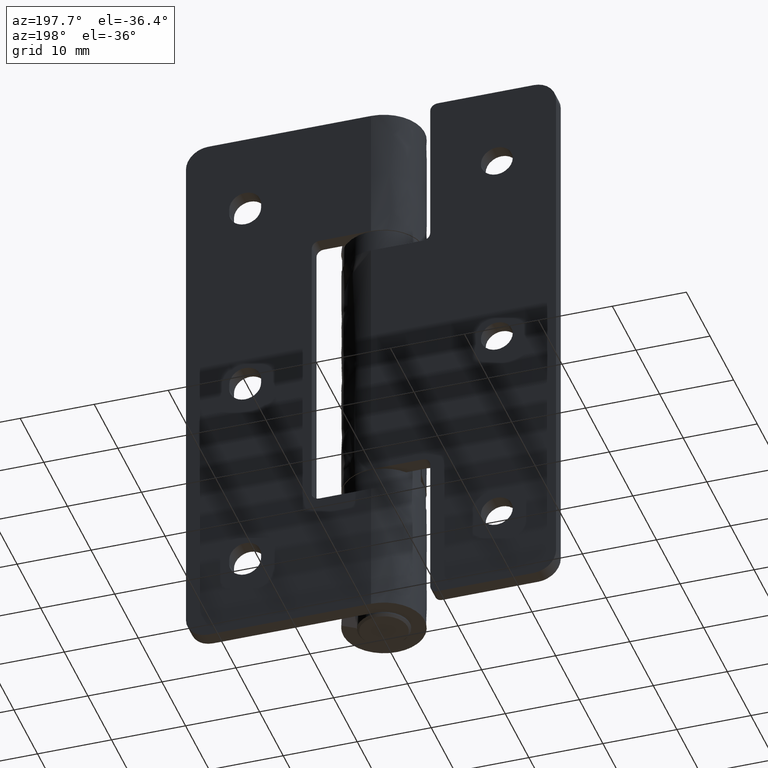
[diagram: clean part render]
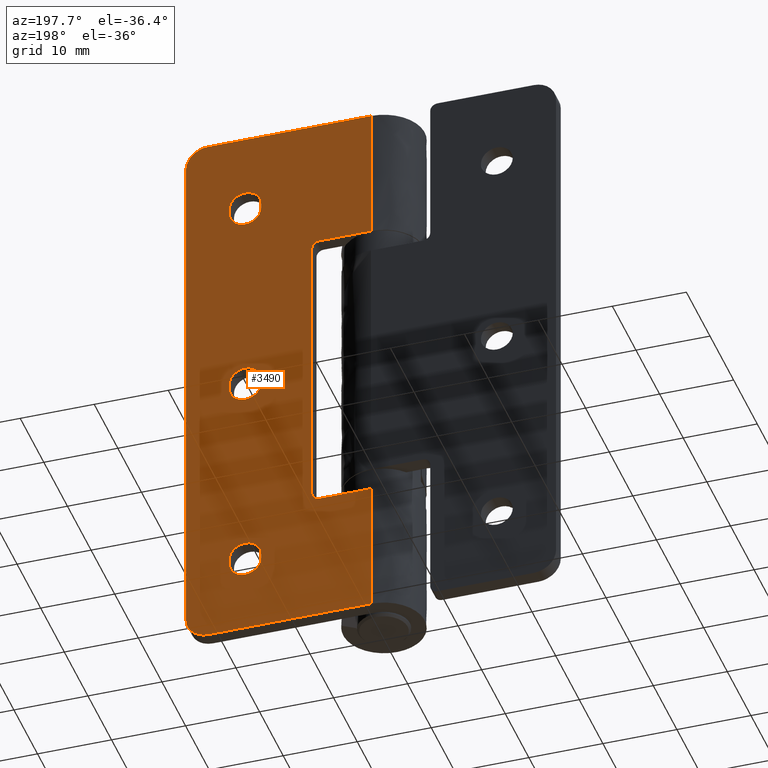
[diagram: same view with one face highlighted and labeled with its STEP entity id]
A machine part, auxiliary view. The second image highlights one B-rep face of the part: STEP entity #3490.
In plain terms, the highlighted face is a freeform B-spline surface patch.
Its self-contained STEP definition (entity closure, byte-faithful):
#3152=CARTESIAN_POINT('',(-1.248749951545153,5.500000000000229,-3.896099848820864));
#3153=CARTESIAN_POINT('',(-1.248749951545153,5.500000000000229,81.896101940943907));
#3154=CARTESIAN_POINT('',(26.248750622097401,5.500000000000229,-3.896099848820863));
#3155=CARTESIAN_POINT('',(26.248750622097401,5.500000000000229,81.896101940943893));
#3156=B_SPLINE_SURFACE_WITH_KNOTS('',1,1,((#3152,#3154),(#3153,#3155)),.UNSPECIFIED.,.F.,.F.,.U.,(2,2),(2,2),(0.0,85.792201789764775),(0.0,27.497500573642562),.UNSPECIFIED.);
#3157=CARTESIAN_POINT('',(25.0,5.500000000000229,75.0));
#3158=VERTEX_POINT('',#3157);
#3159=CARTESIAN_POINT('',(25.0,5.500000000000229,3.0));
#3160=VERTEX_POINT('',#3159);
#3161=CARTESIAN_POINT('',(25.0,5.500000000000229,75.0));
#3162=CARTESIAN_POINT('',(25.0,5.500000000000229,3.0));
#3163=QUASI_UNIFORM_CURVE('',1,(#3161,#3162),.UNSPECIFIED.,.F.,.U.);
#3164=EDGE_CURVE('',#3158,#3160,#3163,.T.);
#3165=ORIENTED_EDGE('',*,*,#3164,.T.);
#3166=CARTESIAN_POINT('',(22.0,5.500000000000229,0.0));
#3167=VERTEX_POINT('',#3166);
#3168=CARTESIAN_POINT('',(25.0,5.500000000000229,3.0));
#3169=CARTESIAN_POINT('',(25.000027480727439,5.500000000000230,2.791382157793408));
#3170=CARTESIAN_POINT('',(24.953751763112731,5.500000000000223,2.349601050011243));
#3171=CARTESIAN_POINT('',(24.744550256856702,5.500000000000227,1.729081440651634));
#3172=CARTESIAN_POINT('',(24.360088237216491,5.500000000000229,1.096373399505009));
#3173=CARTESIAN_POINT('',(23.836272029858499,5.500000000000240,0.585221534538158));
#3174=CARTESIAN_POINT('',(23.213104508231918,5.500000000000208,0.232317915967362));
#3175=CARTESIAN_POINT('',(22.613574675077700,5.500000000000273,0.042417446279853));
#3176=CARTESIAN_POINT('',(22.208618388382650,5.500000000000165,-0.000032017783351));
#3177=CARTESIAN_POINT('',(22.0,5.500000000000229,0.0));
#3178=B_SPLINE_CURVE_WITH_KNOTS('',3,(#3168,#3169,#3170,#3171,#3172,#3173,#3174,#3175,#3176,#3177),.UNSPECIFIED.,.F.,.U.,(4,1,1,1,1,1,1,4),(0.000000112346786,0.625853452176254,1.325372295738692,1.951245934180809,2.834800403710038,3.497497864234447,4.086567110701514,4.712418548635879),.UNSPECIFIED.);
#3179=EDGE_CURVE('',#3160,#3167,#3178,.T.);
#3180=ORIENTED_EDGE('',*,*,#3179,.T.);
#3181=CARTESIAN_POINT('',(-1.010300E-015,5.500000000000000,0.0));
#3182=VERTEX_POINT('',#3181);
#3183=CARTESIAN_POINT('',(-1.010300E-015,5.500000000000000,0.0));
#3184=CARTESIAN_POINT('',(22.0,5.500000000000229,0.0));
#3185=QUASI_UNIFORM_CURVE('',1,(#3183,#3184),.UNSPECIFIED.,.F.,.U.);
#3186=EDGE_CURVE('',#3182,#3167,#3185,.T.);
#3187=ORIENTED_EDGE('',*,*,#3186,.F.);
#3188=CARTESIAN_POINT('',(-1.010298E-015,5.500000000000229,18.399999999999999));
#3189=VERTEX_POINT('',#3188);
#3190=CARTESIAN_POINT('',(-1.010298E-015,5.500000000000229,18.399999999999999));
#3191=CARTESIAN_POINT('',(-1.010300E-015,5.500000000000000,0.0));
#3192=QUASI_UNIFORM_CURVE('',1,(#3190,#3191),.UNSPECIFIED.,.F.,.U.);
#3193=EDGE_CURVE('',#3189,#3182,#3192,.T.);
#3194=ORIENTED_EDGE('',*,*,#3193,.F.);
#3195=CARTESIAN_POINT('',(7.0,5.500000000000229,18.399999999999999));
#3196=VERTEX_POINT('',#3195);
#3197=CARTESIAN_POINT('',(7.0,5.500000000000229,18.399999999999999));
#3198=CARTESIAN_POINT('',(-1.010298E-015,5.500000000000229,18.399999999999999));
#3199=QUASI_UNIFORM_CURVE('',1,(#3197,#3198),.UNSPECIFIED.,.F.,.U.);
#3200=EDGE_CURVE('',#3196,#3189,#3199,.T.);
#3201=ORIENTED_EDGE('',*,*,#3200,.F.);
#3202=CARTESIAN_POINT('',(8.0,5.500000000000229,19.399999999999999));
#3203=VERTEX_POINT('',#3202);
#3204=CARTESIAN_POINT('',(7.0,5.500000000000229,18.399999999999999));
#3205=CARTESIAN_POINT('',(7.122733016979033,5.500000000000245,18.399895552530751));
#3206=CARTESIAN_POINT('',(7.359916224974505,5.500000000000259,18.444234004660490));
#3207=CARTESIAN_POINT('',(7.623414405616289,5.500000000000251,18.602115098026680));
#3208=CARTESIAN_POINT('',(7.799073741381147,5.500000000000273,18.786764003433792));
#3209=CARTESIAN_POINT('',(7.950319505397046,5.500000000000277,19.031991089431131));
#3210=CARTESIAN_POINT('',(8.000204088452458,5.500000000000203,19.252695078528539));
#3211=CARTESIAN_POINT('',(8.0,5.500000000000229,19.399999999999999));
#3212=B_SPLINE_CURVE_WITH_KNOTS('',3,(#3204,#3205,#3206,#3207,#3208,#3209,#3210,#3211),.UNSPECIFIED.,.F.,.U.,(4,1,1,1,1,4),(0.000000190633160,0.368164290180451,0.711792073891184,0.908118885505922,1.129035800121164,1.570835744366339),.UNSPECIFIED.);
#3213=EDGE_CURVE('',#3196,#3203,#3212,.T.);
#3214=ORIENTED_EDGE('',*,*,#3213,.T.);
#3215=CARTESIAN_POINT('',(8.0,5.500000000000229,58.600000000000001));
#3216=VERTEX_POINT('',#3215);
#3217=CARTESIAN_POINT('',(8.0,5.500000000000229,58.600000000000001));
#3218=CARTESIAN_POINT('',(8.0,5.500000000000229,19.399999999999999));
#3219=QUASI_UNIFORM_CURVE('',1,(#3217,#3218),.UNSPECIFIED.,.F.,.U.);
#3220=EDGE_CURVE('',#3216,#3203,#3219,.T.);
#3221=ORIENTED_EDGE('',*,*,#3220,.F.);
#3222=CARTESIAN_POINT('',(7.0,5.500000000000229,59.600000000000001));
#3223=VERTEX_POINT('',#3222);
#3224=CARTESIAN_POINT('',(8.0,5.500000000000229,58.600000000000001));
#3225=CARTESIAN_POINT('',(8.000207064434116,5.500000000000238,58.747302607548853));
#3226=CARTESIAN_POINT('',(7.946624237905478,5.500000000000288,58.984364989697177));
#3227=CARTESIAN_POINT('',(7.779953293382036,5.500000000000262,59.240380927078640));
#3228=CARTESIAN_POINT('',(7.613247768222467,5.500000000000291,59.399087968788422));
#3229=CARTESIAN_POINT('',(7.367999467945572,5.500000000000258,59.550290120768317));
#3230=CARTESIAN_POINT('',(7.147311516264673,5.500000000000254,59.600232410792479));
#3231=CARTESIAN_POINT('',(7.0,5.500000000000229,59.600000000000001));
#3232=B_SPLINE_CURVE_WITH_KNOTS('',3,(#3224,#3225,#3226,#3227,#3228,#3229,#3230,#3231),.UNSPECIFIED.,.F.,.U.,(4,1,1,1,1,4),(0.000000190633850,0.441803229700220,0.711792073891369,0.908118885506143,1.129035800121335,1.570835744366331),.UNSPECIFIED.);
#3233=EDGE_CURVE('',#3216,#3223,#3232,.T.);
#3234=ORIENTED_EDGE('',*,*,#3233,.T.);
#3235=CARTESIAN_POINT('',(-1.010298E-015,5.500000000000229,59.600000000000001));
#3236=VERTEX_POINT('',#3235);
#3237=CARTESIAN_POINT('',(-1.010298E-015,5.500000000000229,59.600000000000001));
#3238=CARTESIAN_POINT('',(7.0,5.500000000000229,59.600000000000001));
#3239=QUASI_UNIFORM_CURVE('',1,(#3237,#3238),.UNSPECIFIED.,.F.,.U.);
#3240=EDGE_CURVE('',#3236,#3223,#3239,.T.);
#3241=ORIENTED_EDGE('',*,*,#3240,.F.);
#3242=CARTESIAN_POINT('',(-1.010300E-015,5.500000000000000,78.0));
#3243=VERTEX_POINT('',#3242);
#3244=CARTESIAN_POINT('',(-1.010300E-015,5.500000000000000,78.0));
#3245=CARTESIAN_POINT('',(-1.010298E-015,5.500000000000229,59.600000000000001));
#3246=QUASI_UNIFORM_CURVE('',1,(#3244,#3245),.UNSPECIFIED.,.F.,.U.);
#3247=EDGE_CURVE('',#3243,#3236,#3246,.T.);
#3248=ORIENTED_EDGE('',*,*,#3247,.F.);
#3249=CARTESIAN_POINT('',(22.0,5.500000000000229,78.0));
#3250=VERTEX_POINT('',#3249);
#3251=CARTESIAN_POINT('',(-1.010300E-015,5.500000000000000,78.0));
#3252=CARTESIAN_POINT('',(22.0,5.500000000000229,78.0));
#3253=QUASI_UNIFORM_CURVE('',1,(#3251,#3252),.UNSPECIFIED.,.F.,.U.);
#3254=EDGE_CURVE('',#3243,#3250,#3253,.T.);
#3255=ORIENTED_EDGE('',*,*,#3254,.T.);
#3256=CARTESIAN_POINT('',(22.0,5.500000000000229,78.0));
#3257=CARTESIAN_POINT('',(22.368216167830219,5.500000000000222,78.000351922563809));
#3258=CARTESIAN_POINT('',(22.907922061365358,5.500000000000255,77.899302166163594));
#3259=CARTESIAN_POINT('',(23.527780180429009,5.500000000000199,77.596663682540125));
#3260=CARTESIAN_POINT('',(23.950314857726180,5.500000000000247,77.299089123863723));
#3261=CARTESIAN_POINT('',(24.368900631345760,5.500000000000208,76.880602062584828));
#3262=CARTESIAN_POINT('',(24.699615870477110,5.500000000000235,76.358289352839705));
#3263=CARTESIAN_POINT('',(24.939939580915599,5.500000000000258,75.711723167254732));
#3264=CARTESIAN_POINT('',(25.000090203046550,5.500000000000155,75.269989387828858));
#3265=CARTESIAN_POINT('',(25.0,5.500000000000229,75.0));
#3266=B_SPLINE_CURVE_WITH_KNOTS('',3,(#3256,#3257,#3258,#3259,#3260,#3261,#3262,#3263,#3264,#3265),.UNSPECIFIED.,.F.,.U.,(4,1,1,1,1,1,1,4),(0.000000112367895,1.104471261169003,1.619896332912149,2.061710574721529,2.650708101128982,3.387046727574245,3.902475667534876,4.712418548635933),.UNSPECIFIED.);
#3267=EDGE_CURVE('',#3250,#3158,#3266,.T.);
#3268=ORIENTED_EDGE('',*,*,#3267,.T.);
#3269=EDGE_LOOP('',(#3165,#3180,#3187,#3194,#3201,#3214,#3221,#3234,#3241,#3248,#3255,#3268));
#3270=FACE_OUTER_BOUND('',#3269,.T.);
#3271=CARTESIAN_POINT('',(14.850000000000000,5.500000000000229,10.649999999999800));
#3272=VERTEX_POINT('',#3271);
#3273=CARTESIAN_POINT('',(14.850000000000000,5.500000000000229,11.350000000000000));
#3274=VERTEX_POINT('',#3273);
#3275=CARTESIAN_POINT('',(14.850000000000000,5.500000000000229,10.649999999999800));
#3276=CARTESIAN_POINT('',(14.850000000000000,5.500000000000229,11.350000000000000));
#3277=QUASI_UNIFORM_CURVE('',1,(#3275,#3276),.UNSPECIFIED.,.F.,.U.);
#3278=EDGE_CURVE('',#3272,#3274,#3277,.T.);
#3279=ORIENTED_EDGE('',*,*,#3278,.F.);
#3280=CARTESIAN_POINT('',(17.000001122999951,5.500000000000229,8.500000000000092));
#3281=VERTEX_POINT('',#3280);
#3282=CARTESIAN_POINT('',(14.850000000000000,5.500000000000229,10.649999999999800));
#3283=CARTESIAN_POINT('',(14.849687796595610,5.500000000000234,10.368506948953460));
#3284=CARTESIAN_POINT('',(14.934122634665581,5.500000000000219,9.946605623540156));
#3285=CARTESIAN_POINT('',(15.200832736198249,5.500000000000220,9.447819592973135));
#3286=CARTESIAN_POINT('',(15.469923950533840,5.500000000000222,9.119934149696464));
#3287=CARTESIAN_POINT('',(15.866088824986671,5.500000000000219,8.794650621136238));
#3288=CARTESIAN_POINT('',(16.384350508665928,5.500000000000218,8.557300128019783));
#3289=CARTESIAN_POINT('',(16.806520867510930,5.500000000000219,8.499953506318942));
#3290=CARTESIAN_POINT('',(17.000001122999951,5.500000000000229,8.500000000000092));
#3291=B_SPLINE_CURVE_WITH_KNOTS('',3,(#3282,#3283,#3284,#3285,#3286,#3287,#3288,#3289,#3290),.UNSPECIFIED.,.F.,.U.,(4,1,1,1,1,1,4),(0.000000057719685,0.844324508050216,1.266504055672888,1.688648774640934,2.110792728725682,2.796835171921635,3.377297483277473),.UNSPECIFIED.);
#3292=EDGE_CURVE('',#3272,#3281,#3291,.T.);
#3293=ORIENTED_EDGE('',*,*,#3292,.T.);
#3294=CARTESIAN_POINT('',(19.149999999999999,5.500000000000280,10.650000000000000));
#3295=VERTEX_POINT('',#3294);
#3296=CARTESIAN_POINT('',(17.000001122999951,5.500000000000229,8.500000000000092));
#3297=CARTESIAN_POINT('',(17.175897079573790,5.500000000000235,8.499954763134372));
#3298=CARTESIAN_POINT('',(17.492490660445348,5.500000000000219,8.539079294472074));
#3299=CARTESIAN_POINT('',(17.958468096615341,5.500000000000258,8.705782459338822));
#3300=CARTESIAN_POINT('',(18.347757056973570,5.500000000000249,8.952295975128479));
#3301=CARTESIAN_POINT('',(18.685182347972749,5.500000000000256,9.289755498231257));
#3302=CARTESIAN_POINT('',(18.955469175395169,5.500000000000250,9.705091347311617));
#3303=CARTESIAN_POINT('',(19.117112608123019,5.500000000000325,10.175077374258400));
#3304=CARTESIAN_POINT('',(19.150011384014601,5.500000000000229,10.509289833222450));
#3305=CARTESIAN_POINT('',(19.149999999999999,5.500000000000280,10.650000000000000));
#3306=B_SPLINE_CURVE_WITH_KNOTS('',3,(#3296,#3297,#3298,#3299,#3300,#3301,#3302,#3303,#3304,#3305),.UNSPECIFIED.,.F.,.U.,(4,1,1,1,1,1,1,4),(0.000000059261062,0.527691814023775,0.949867999421591,1.477581895061717,1.899712391790412,2.374656824309788,2.955152420519115,3.377296217363298),.UNSPECIFIED.);
#3307=EDGE_CURVE('',#3281,#3295,#3306,.T.);
#3308=ORIENTED_EDGE('',*,*,#3307,.T.);
#3309=CARTESIAN_POINT('',(19.149999999999999,5.500000000000229,11.350000000000000));
#3310=VERTEX_POINT('',#3309);
#3311=CARTESIAN_POINT('',(19.149999999999999,5.500000000000229,11.350000000000000));
#3312=CARTESIAN_POINT('',(19.149999999999999,5.500000000000280,10.650000000000000));
#3313=QUASI_UNIFORM_CURVE('',1,(#3311,#3312),.UNSPECIFIED.,.F.,.U.);
#3314=EDGE_CURVE('',#3310,#3295,#3313,.T.);
#3315=ORIENTED_EDGE('',*,*,#3314,.F.);
#3316=CARTESIAN_POINT('',(16.999998877000049,5.500000000000230,13.499999999999710));
#3317=VERTEX_POINT('',#3316);
#3318=CARTESIAN_POINT('',(19.149999999999999,5.500000000000229,11.350000000000000));
#3319=CARTESIAN_POINT('',(19.150039314172790,5.500000000000237,11.525896413800380));
#3320=CARTESIAN_POINT('',(19.110926878589691,5.500000000000218,11.842489674414900));
#3321=CARTESIAN_POINT('',(18.944205909352000,5.500000000000242,12.308459008741661));
#3322=CARTESIAN_POINT('',(18.659827808441730,5.500000000000227,12.757698556185121));
#3323=CARTESIAN_POINT('',(18.251389567063089,5.500000000000222,13.127844711650271));
#3324=CARTESIAN_POINT('',(17.685839065821511,5.500000000000264,13.421241233973049));
#3325=CARTESIAN_POINT('',(17.263887526727871,5.500000000000214,13.500244671249490));
#3326=CARTESIAN_POINT('',(16.999998877000049,5.500000000000230,13.499999999999710));
#3327=B_SPLINE_CURVE_WITH_KNOTS('',3,(#3318,#3319,#3320,#3321,#3322,#3323,#3324,#3325,#3326),.UNSPECIFIED.,.F.,.U.,(4,1,1,1,1,1,4),(0.000000057720826,0.527692010635346,0.949868354316556,1.477582446766386,2.110792728726112,2.585743883256381,3.377297483277477),.UNSPECIFIED.);
#3328=EDGE_CURVE('',#3310,#3317,#3327,.T.);
#3329=ORIENTED_EDGE('',*,*,#3328,.T.);
#3330=CARTESIAN_POINT('',(16.999998877000049,5.500000000000230,13.499999999999710));
#3331=CARTESIAN_POINT('',(16.859288073929179,5.500000000000226,13.500009773555940));
#3332=CARTESIAN_POINT('',(16.507488502294589,5.500000000000247,13.465392383201380));
#3333=CARTESIAN_POINT('',(15.971714515054110,5.500000000000210,13.273795144547730));
#3334=CARTESIAN_POINT('',(15.443267345968479,5.500000000000261,12.881845087876069));
#3335=CARTESIAN_POINT('',(15.088456692358580,5.500000000000173,12.390963476529370));
#3336=CARTESIAN_POINT('',(14.891256459637800,5.500000000000286,11.860069417574939));
#3337=CARTESIAN_POINT('',(14.849959817322651,5.500000000000193,11.525895670986509));
#3338=CARTESIAN_POINT('',(14.850000000000000,5.500000000000229,11.350000000000000));
#3339=B_SPLINE_CURVE_WITH_KNOTS('',3,(#3330,#3331,#3332,#3333,#3334,#3335,#3336,#3337,#3338),.UNSPECIFIED.,.F.,.U.,(4,1,1,1,1,1,4),(0.000000059262241,0.422144966430587,1.055413846517017,1.688648139764919,2.374656824309737,2.849607368543629,3.377296217363220),.UNSPECIFIED.);
#3340=EDGE_CURVE('',#3317,#3274,#3339,.T.);
#3341=ORIENTED_EDGE('',*,*,#3340,.T.);
#3342=EDGE_LOOP('',(#3279,#3293,#3308,#3315,#3329,#3341));
#3343=FACE_BOUND('',#3342,.T.);
#3344=CARTESIAN_POINT('',(14.850000000000000,5.500000000000280,39.350000000000001));
#3345=VERTEX_POINT('',#3344);
#3346=CARTESIAN_POINT('',(14.850000000000000,5.500000000000229,38.649999999999999));
#3347=VERTEX_POINT('',#3346);
#3348=CARTESIAN_POINT('',(14.850000000000000,5.500000000000280,39.350000000000001));
#3349=CARTESIAN_POINT('',(14.850000000000000,5.500000000000229,38.649999999999999));
#3350=QUASI_UNIFORM_CURVE('',1,(#3348,#3349),.UNSPECIFIED.,.F.,.U.);
#3351=EDGE_CURVE('',#3345,#3347,#3350,.T.);
#3352=ORIENTED_EDGE('',*,*,#3351,.T.);
#3353=CARTESIAN_POINT('',(17.000001122999951,5.500000000000228,36.500000000000291));
#3354=VERTEX_POINT('',#3353);
#3355=CARTESIAN_POINT('',(14.850000000000000,5.500000000000229,38.649999999999999));
#3356=CARTESIAN_POINT('',(14.849695934678291,5.500000000000220,38.368522585511542));
#3357=CARTESIAN_POINT('',(14.948157382190500,5.500000000000237,37.876240882278317));
#3358=CARTESIAN_POINT('',(15.277251434481901,5.500000000000233,37.327204513590992));
#3359=CARTESIAN_POINT('',(15.614779618296550,5.500000000000229,36.989829022877863));
#3360=CARTESIAN_POINT('',(15.949591331209930,5.500000000000219,36.760101036351351));
#3361=CARTESIAN_POINT('',(16.402020811598689,5.500000000000254,36.559504938215632));
#3362=CARTESIAN_POINT('',(16.771319694310868,5.500000000000227,36.499876615454468));
#3363=CARTESIAN_POINT('',(17.000001122999951,5.500000000000228,36.500000000000291));
#3364=B_SPLINE_CURVE_WITH_KNOTS('',3,(#3355,#3356,#3357,#3358,#3359,#3360,#3361,#3362,#3363),.UNSPECIFIED.,.F.,.U.,(4,1,1,1,1,1,4),(0.000000057724561,0.844324508054036,1.477582446768433,1.899713102238593,2.269111085663823,2.691288542554037,3.377297483277436),.UNSPECIFIED.);
#3365=EDGE_CURVE('',#3347,#3354,#3364,.T.);
#3366=ORIENTED_EDGE('',*,*,#3365,.T.);
#3367=CARTESIAN_POINT('',(19.149999999999999,5.500000000000229,38.649999999999999));
#3368=VERTEX_POINT('',#3367);
#3369=CARTESIAN_POINT('',(17.000001122999951,5.500000000000228,36.500000000000291));
#3370=CARTESIAN_POINT('',(17.175896718693661,5.500000000000219,36.499960620705849));
#3371=CARTESIAN_POINT('',(17.492493393724239,5.500000000000247,36.539070451329842));
#3372=CARTESIAN_POINT('',(17.891888269361509,5.500000000000211,36.681989836998113));
#3373=CARTESIAN_POINT('',(18.229492498223369,5.500000000000241,36.873261900257070));
#3374=CARTESIAN_POINT('',(18.598476114022041,5.500000000000232,37.175925497967583));
#3375=CARTESIAN_POINT('',(18.911543559865891,5.500000000000196,37.609026234750772));
#3376=CARTESIAN_POINT('',(19.108743465437819,5.500000000000248,38.139932356334192));
#3377=CARTESIAN_POINT('',(19.150040215636199,5.500000000000221,38.474104340376037));
#3378=CARTESIAN_POINT('',(19.149999999999999,5.500000000000229,38.649999999999999));
#3379=B_SPLINE_CURVE_WITH_KNOTS('',3,(#3369,#3370,#3371,#3372,#3373,#3374,#3375,#3376,#3377,#3378),.UNSPECIFIED.,.F.,.U.,(4,1,1,1,1,1,1,4),(0.000000059261025,0.527691814023772,0.949867999421654,1.266503582381183,1.688648139764941,2.374656824310075,2.849607368543814,3.377296217363201),.UNSPECIFIED.);
#3380=EDGE_CURVE('',#3354,#3368,#3379,.T.);
#3381=ORIENTED_EDGE('',*,*,#3380,.T.);
#3382=CARTESIAN_POINT('',(19.149999999999999,5.500000000000229,39.350000000000001));
#3383=VERTEX_POINT('',#3382);
#3384=CARTESIAN_POINT('',(19.149999999999999,5.500000000000229,38.649999999999999));
#3385=CARTESIAN_POINT('',(19.149999999999999,5.500000000000229,39.350000000000001));
#3386=QUASI_UNIFORM_CURVE('',1,(#3384,#3385),.UNSPECIFIED.,.F.,.U.);
#3387=EDGE_CURVE('',#3368,#3383,#3386,.T.);
#3388=ORIENTED_EDGE('',*,*,#3387,.T.);
#3389=CARTESIAN_POINT('',(16.999998877000049,5.500000000000229,41.499999999999709));
#3390=VERTEX_POINT('',#3389);
#3391=CARTESIAN_POINT('',(19.149999999999999,5.500000000000229,39.350000000000001));
#3392=CARTESIAN_POINT('',(19.150169626318601,5.500000000000239,39.596285158891327));
#3393=CARTESIAN_POINT('',(19.088889510506899,5.500000000000207,39.947953938512953));
#3394=CARTESIAN_POINT('',(18.888692940783461,5.500000000000231,40.399431716321388));
#3395=CARTESIAN_POINT('',(18.672692208013000,5.500000000000223,40.722745093137263));
#3396=CARTESIAN_POINT('',(18.385233654593829,5.500000000000195,41.010178985473942));
#3397=CARTESIAN_POINT('',(18.050408278869789,5.500000000000265,41.239899656337244));
#3398=CARTESIAN_POINT('',(17.597980017314640,5.500000000000198,41.440494359662942));
#3399=CARTESIAN_POINT('',(17.228680210090008,5.500000000000249,41.500123755406527));
#3400=CARTESIAN_POINT('',(16.999998877000049,5.500000000000229,41.499999999999709));
#3401=B_SPLINE_CURVE_WITH_KNOTS('',3,(#3391,#3392,#3393,#3394,#3395,#3396,#3397,#3398,#3399,#3400),.UNSPECIFIED.,.F.,.U.,(4,1,1,1,1,1,1,4),(0.000000057717367,0.738783703042488,1.055414240955854,1.477582446765160,1.899713102235997,2.269111085661811,2.691288542552708,3.377297483277507),.UNSPECIFIED.);
#3402=EDGE_CURVE('',#3383,#3390,#3401,.T.);
#3403=ORIENTED_EDGE('',*,*,#3402,.T.);
#3404=CARTESIAN_POINT('',(16.999998877000049,5.500000000000229,41.499999999999709));
#3405=CARTESIAN_POINT('',(16.788915989668009,5.500000000000246,41.500092915711463));
#3406=CARTESIAN_POINT('',(16.366803156702410,5.500000000000225,41.437329234461863));
#3407=CARTESIAN_POINT('',(15.852433967928750,5.500000000000219,41.194115510175578));
#3408=CARTESIAN_POINT('',(15.401549016088930,5.500000000000306,40.824036234026373));
#3409=CARTESIAN_POINT('',(15.088447552668260,5.500000000000223,40.390985278279842));
#3410=CARTESIAN_POINT('',(14.891259284522290,5.500000000000316,39.860065101458730));
#3411=CARTESIAN_POINT('',(14.849959042632960,5.500000000000245,39.525896049207311));
#3412=CARTESIAN_POINT('',(14.850000000000000,5.500000000000280,39.350000000000001));
#3413=B_SPLINE_CURVE_WITH_KNOTS('',3,(#3404,#3405,#3406,#3407,#3408,#3409,#3410,#3411,#3412),.UNSPECIFIED.,.F.,.U.,(4,1,1,1,1,1,4),(0.000000059257458,0.633238630296395,1.266503582378710,1.688648139762868,2.374656824308879,2.849607368543188,3.377296217363217),.UNSPECIFIED.);
#3414=EDGE_CURVE('',#3390,#3345,#3413,.T.);
#3415=ORIENTED_EDGE('',*,*,#3414,.T.);
#3416=EDGE_LOOP('',(#3352,#3366,#3381,#3388,#3403,#3415));
#3417=FACE_BOUND('',#3416,.T.);
#3418=CARTESIAN_POINT('',(19.149999999999999,5.500000000000229,66.650000000000006));
#3419=VERTEX_POINT('',#3418);
#3420=CARTESIAN_POINT('',(19.149999999999999,5.500000000000229,67.349999999999994));
#3421=VERTEX_POINT('',#3420);
#3422=CARTESIAN_POINT('',(19.149999999999999,5.500000000000229,66.650000000000006));
#3423=CARTESIAN_POINT('',(19.149999999999999,5.500000000000229,67.349999999999994));
#3424=QUASI_UNIFORM_CURVE('',1,(#3422,#3423),.UNSPECIFIED.,.F.,.U.);
#3425=EDGE_CURVE('',#3419,#3421,#3424,.T.);
#3426=ORIENTED_EDGE('',*,*,#3425,.T.);
#3427=CARTESIAN_POINT('',(16.999998877000049,5.500000000000228,69.499999999999687));
#3428=VERTEX_POINT('',#3427);
#3429=CARTESIAN_POINT('',(19.149999999999999,5.500000000000229,67.349999999999994));
#3430=CARTESIAN_POINT('',(19.150194875566200,5.500000000000231,67.596287718978658));
#3431=CARTESIAN_POINT('',(19.088866669454131,5.500000000000226,67.947951844543226));
#3432=CARTESIAN_POINT('',(18.888698704571269,5.500000000000227,68.399430707868504));
#3433=CARTESIAN_POINT('',(18.672688466783740,5.500000000000252,68.722743809737509));
#3434=CARTESIAN_POINT('',(18.360244587699661,5.500000000000214,69.035181800736382));
#3435=CARTESIAN_POINT('',(17.944908462691561,5.500000000000240,69.305469432621436));
#3436=CARTESIAN_POINT('',(17.474921384111379,5.500000000000205,69.467112463384012));
#3437=CARTESIAN_POINT('',(17.140709155401129,5.500000000000258,69.500011478485064));
#3438=CARTESIAN_POINT('',(16.999998877000049,5.500000000000228,69.499999999999687));
#3439=B_SPLINE_CURVE_WITH_KNOTS('',3,(#3429,#3430,#3431,#3432,#3433,#3434,#3435,#3436,#3437,#3438),.UNSPECIFIED.,.F.,.U.,(4,1,1,1,1,1,1,4),(0.000000057714401,0.738783703038981,1.055414240952305,1.477582446761689,1.899713102233107,2.374657714922232,2.955153528402041,3.377297483277514),.UNSPECIFIED.);
#3440=EDGE_CURVE('',#3421,#3428,#3439,.T.);
#3441=ORIENTED_EDGE('',*,*,#3440,.T.);
#3442=CARTESIAN_POINT('',(14.850000000000000,5.500000000000229,67.349999999999994));
#3443=VERTEX_POINT('',#3442);
#3444=CARTESIAN_POINT('',(16.999998877000049,5.500000000000228,69.499999999999687));
#3445=CARTESIAN_POINT('',(16.788915029401380,5.500000000000239,69.500094143527207));
#3446=CARTESIAN_POINT('',(16.366806787237689,5.500000000000220,69.437324920826981));
#3447=CARTESIAN_POINT('',(15.852417722030371,5.500000000000235,69.194130681508256));
#3448=CARTESIAN_POINT('',(15.497264294237350,5.500000000000225,68.902480854926054));
#3449=CARTESIAN_POINT('',(15.209220833751459,5.500000000000222,68.568639984914057));
#3450=CARTESIAN_POINT('',(14.935267258134051,5.500000000000204,68.071061098514164));
#3451=CARTESIAN_POINT('',(14.849779342736690,5.500000000000243,67.613868833297730));
#3452=CARTESIAN_POINT('',(14.850000000000000,5.500000000000229,67.349999999999994));
#3453=B_SPLINE_CURVE_WITH_KNOTS('',3,(#3444,#3445,#3446,#3447,#3448,#3449,#3450,#3451,#3452),.UNSPECIFIED.,.F.,.U.,(4,1,1,1,1,1,4),(0.000000059264075,0.633238630301499,1.266503582382305,1.688648139765491,2.005250117323747,2.585742914025822,3.377296217363206),.UNSPECIFIED.);
#3454=EDGE_CURVE('',#3428,#3443,#3453,.T.);
#3455=ORIENTED_EDGE('',*,*,#3454,.T.);
#3456=CARTESIAN_POINT('',(14.850000000000000,5.500000000000229,66.650000000000006));
#3457=VERTEX_POINT('',#3456);
#3458=CARTESIAN_POINT('',(14.850000000000000,5.500000000000229,67.349999999999994));
#3459=CARTESIAN_POINT('',(14.850000000000000,5.500000000000229,66.650000000000006));
#3460=QUASI_UNIFORM_CURVE('',1,(#3458,#3459),.UNSPECIFIED.,.F.,.U.);
#3461=EDGE_CURVE('',#3443,#3457,#3460,.T.);
#3462=ORIENTED_EDGE('',*,*,#3461,.T.);
#3463=CARTESIAN_POINT('',(17.000001122999951,5.500000000000229,64.500000000000298));
#3464=VERTEX_POINT('',#3463);
#3465=CARTESIAN_POINT('',(14.850000000000000,5.500000000000229,66.650000000000006));
#3466=CARTESIAN_POINT('',(14.849852373797280,5.500000000000234,66.403728317844724));
#3467=CARTESIAN_POINT('',(14.935497511359580,5.500000000000227,65.911308747363421));
#3468=CARTESIAN_POINT('',(15.287375938103571,5.500000000000226,65.289994869180049));
#3469=CARTESIAN_POINT('',(15.748626825279040,5.500000000000230,64.872174555204069));
#3470=CARTESIAN_POINT('',(16.314159509234109,5.500000000000238,64.578752710142979));
#3471=CARTESIAN_POINT('',(16.736112501312789,5.500000000000214,64.499756349796115));
#3472=CARTESIAN_POINT('',(17.000001122999951,5.500000000000229,64.500000000000298));
#3473=B_SPLINE_CURVE_WITH_KNOTS('',3,(#3465,#3466,#3467,#3468,#3469,#3470,#3471,#3472),.UNSPECIFIED.,.F.,.U.,(4,1,1,1,1,4),(0.000000057724785,0.738783703047220,1.477582446767846,2.110792728727336,2.585743883257174,3.377297483277410),.UNSPECIFIED.);
#3474=EDGE_CURVE('',#3457,#3464,#3473,.T.);
#3475=ORIENTED_EDGE('',*,*,#3474,.T.);
#3476=CARTESIAN_POINT('',(17.000001122999951,5.500000000000229,64.500000000000298));
#3477=CARTESIAN_POINT('',(17.211089325572711,5.500000000000225,64.499898844886005));
#3478=CARTESIAN_POINT('',(17.562816600135051,5.500000000000241,64.552255711242495));
#3479=CARTESIAN_POINT('',(18.085381448824030,5.500000000000227,64.768663480733508));
#3480=CARTESIAN_POINT('',(18.556753653702330,5.500000000000235,65.118116128406683));
#3481=CARTESIAN_POINT('',(18.901092479525161,5.500000000000211,65.594611409648081));
#3482=CARTESIAN_POINT('',(19.104555305574141,5.500000000000253,66.122347583356344));
#3483=CARTESIAN_POINT('',(19.150064412020608,5.500000000000238,66.456512270474050));
#3484=CARTESIAN_POINT('',(19.149999999999999,5.500000000000229,66.650000000000006));
#3485=B_SPLINE_CURVE_WITH_KNOTS('',3,(#3476,#3477,#3478,#3479,#3480,#3481,#3482,#3483,#3484),.UNSPECIFIED.,.F.,.U.,(4,1,1,1,1,1,4),(0.000000059261311,0.633238630299165,1.055413846516001,1.688648139764154,2.374656824309174,2.796834123012677,3.377296217363225),.UNSPECIFIED.);
#3486=EDGE_CURVE('',#3464,#3419,#3485,.T.);
#3487=ORIENTED_EDGE('',*,*,#3486,.T.);
#3488=EDGE_LOOP('',(#3426,#3441,#3455,#3462,#3475,#3487));
#3489=FACE_BOUND('',#3488,.T.);
#3490=ADVANCED_FACE('',(#3270,#3343,#3417,#3489),#3156,.T.);